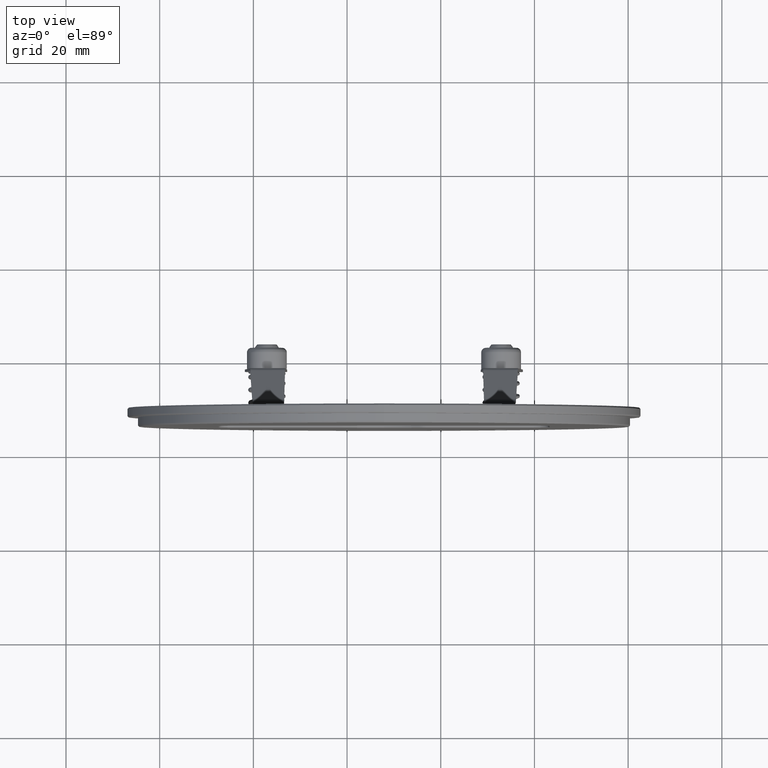
[diagram: clean part render]
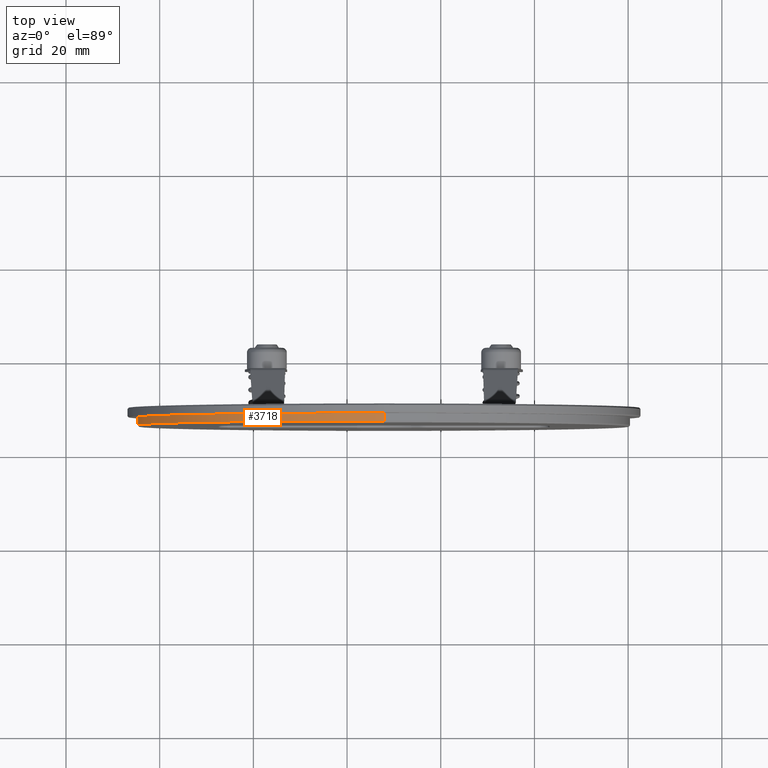
[diagram: same view with one face highlighted and labeled with its STEP entity id]
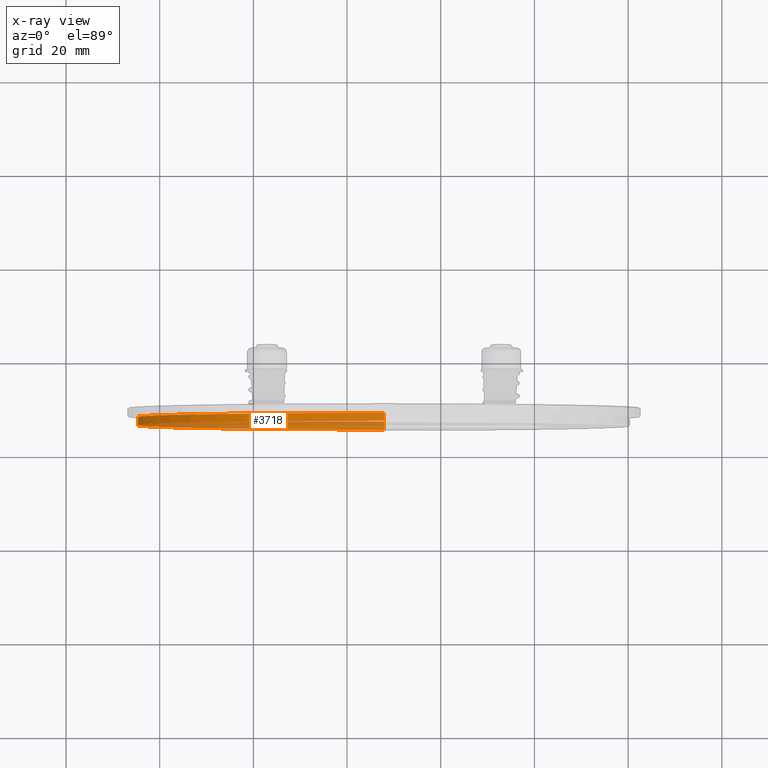
[diagram: x-ray of the same camera — body ghosted, the highlighted face saturated]
A machine part, top view. The second image highlights one B-rep face of the part: STEP entity #3718.
The next image is the same camera in x-ray: the body ghosted, the highlighted face saturated — about 45% of this face is hidden behind the body in this view.
In plain terms, the highlighted cylindrical surface (partial cylindrical patch) has radius 52.65 mm, axis along (-0, -1, -0).
Its self-contained STEP definition (entity closure, byte-faithful):
#23 = VERTEX_POINT ( 'NONE', #265 ) ;
#178 = DIRECTION ( 'NONE',  ( 0.000000000000000000, -1.000000000000000000, 0.000000000000000000 ) ) ;
#195 = VECTOR ( 'NONE', #5905, 1000.000000000000000 ) ;
#241 = DIRECTION ( 'NONE',  ( -0.000000000000000000, -1.000000000000000000, -0.000000000000000000 ) ) ;
#265 = CARTESIAN_POINT ( 'NONE',  ( 0.000000000000000000, -1.700000000000026157, -52.65000000000000568 ) ) ;
#315 = VERTEX_POINT ( 'NONE', #2248 ) ;
#526 = EDGE_LOOP ( 'NONE', ( #2485, #5366, #609, #3894 ) ) ;
#609 = ORIENTED_EDGE ( 'NONE', *, *, #2518, .T. ) ;
#725 = CIRCLE ( 'NONE', #6267, 52.65000000000000568 ) ;
#847 = DIRECTION ( 'NONE',  ( 0.000000000000000000, 1.000000000000000000, 0.000000000000000000 ) ) ;
#1537 = AXIS2_PLACEMENT_3D ( 'NONE', #6614, #178, #2575 ) ;
#2248 = CARTESIAN_POINT ( 'NONE',  ( 6.447765397510815174E-15, -1.700000000000026157, 52.65000000000000568 ) ) ;
#2485 = ORIENTED_EDGE ( 'NONE', *, *, #6619, .F. ) ;
#2518 = EDGE_CURVE ( 'NONE', #5884, #23, #5165, .T. ) ;
#2575 = DIRECTION ( 'NONE',  ( 0.000000000000000000, 0.000000000000000000, -1.000000000000000000 ) ) ;
#2696 = CARTESIAN_POINT ( 'NONE',  ( 0.000000000000000000, 0.000000000000000000, 0.000000000000000000 ) ) ;
#3432 = DIRECTION ( 'NONE',  ( 0.000000000000000000, 0.000000000000000000, -1.000000000000000000 ) ) ;
#3703 = VERTEX_POINT ( 'NONE', #4526 ) ;
#3718 = ADVANCED_FACE ( 'NONE', ( #5789 ), #6462, .T. ) ;
#3894 = ORIENTED_EDGE ( 'NONE', *, *, #5806, .T. ) ;
#3910 = DIRECTION ( 'NONE',  ( 0.000000000000000000, 0.000000000000000000, 1.000000000000000000 ) ) ;
#3948 = CARTESIAN_POINT ( 'NONE',  ( 0.000000000000000000, -1.700000000000026157, 0.000000000000000000 ) ) ;
#4526 = CARTESIAN_POINT ( 'NONE',  ( 6.447765397510815174E-15, 0.000000000000000000, 52.65000000000000568 ) ) ;
#5165 = LINE ( 'NONE', #5273, #195 ) ;
#5273 = CARTESIAN_POINT ( 'NONE',  ( 0.000000000000000000, 0.000000000000000000, -52.65000000000000568 ) ) ;
#5366 = ORIENTED_EDGE ( 'NONE', *, *, #7624, .T. ) ;
#5778 = VECTOR ( 'NONE', #241, 1000.000000000000000 ) ;
#5789 = FACE_OUTER_BOUND ( 'NONE', #526, .T. ) ;
#5806 = EDGE_CURVE ( 'NONE', #23, #315, #725, .T. ) ;
#5884 = VERTEX_POINT ( 'NONE', #7454 ) ;
#5905 = DIRECTION ( 'NONE',  ( -0.000000000000000000, -1.000000000000000000, -0.000000000000000000 ) ) ;
#6161 = CARTESIAN_POINT ( 'NONE',  ( 6.447765397510815174E-15, 0.000000000000000000, 52.65000000000000568 ) ) ;
#6267 = AXIS2_PLACEMENT_3D ( 'NONE', #3948, #847, #3910 ) ;
#6462 = CYLINDRICAL_SURFACE ( 'NONE', #7284, 52.65000000000000568 ) ;
#6614 = CARTESIAN_POINT ( 'NONE',  ( 0.000000000000000000, 0.000000000000000000, 0.000000000000000000 ) ) ;
#6619 = EDGE_CURVE ( 'NONE', #3703, #315, #7519, .T. ) ;
#6852 = CIRCLE ( 'NONE', #1537, 52.65000000000000568 ) ;
#6981 = DIRECTION ( 'NONE',  ( -0.000000000000000000, -1.000000000000000000, -0.000000000000000000 ) ) ;
#7284 = AXIS2_PLACEMENT_3D ( 'NONE', #2696, #6981, #3432 ) ;
#7454 = CARTESIAN_POINT ( 'NONE',  ( 0.000000000000000000, 0.000000000000000000, -52.65000000000000568 ) ) ;
#7519 = LINE ( 'NONE', #6161, #5778 ) ;
#7624 = EDGE_CURVE ( 'NONE', #3703, #5884, #6852, .T. ) ;